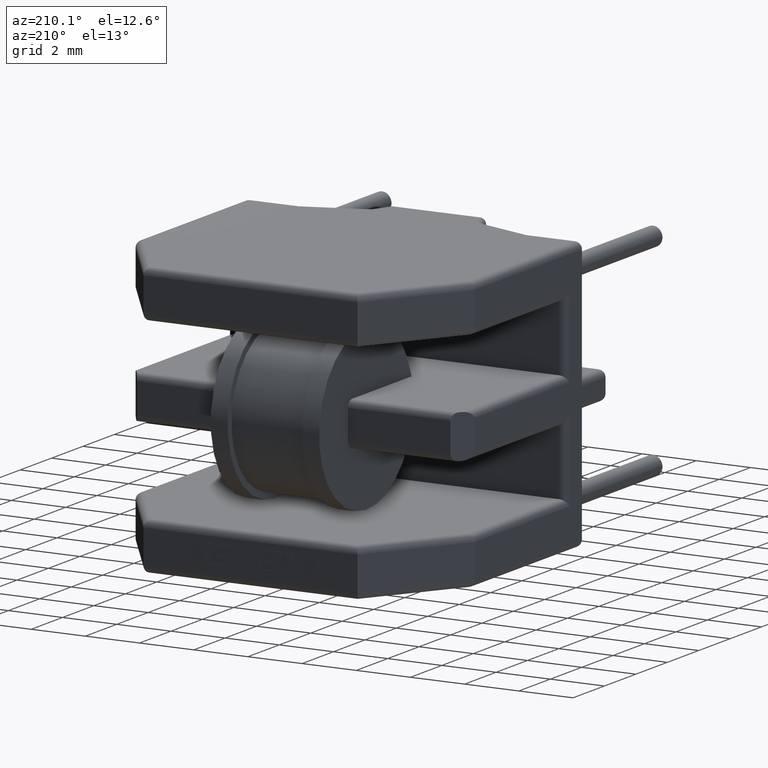
[diagram: clean part render]
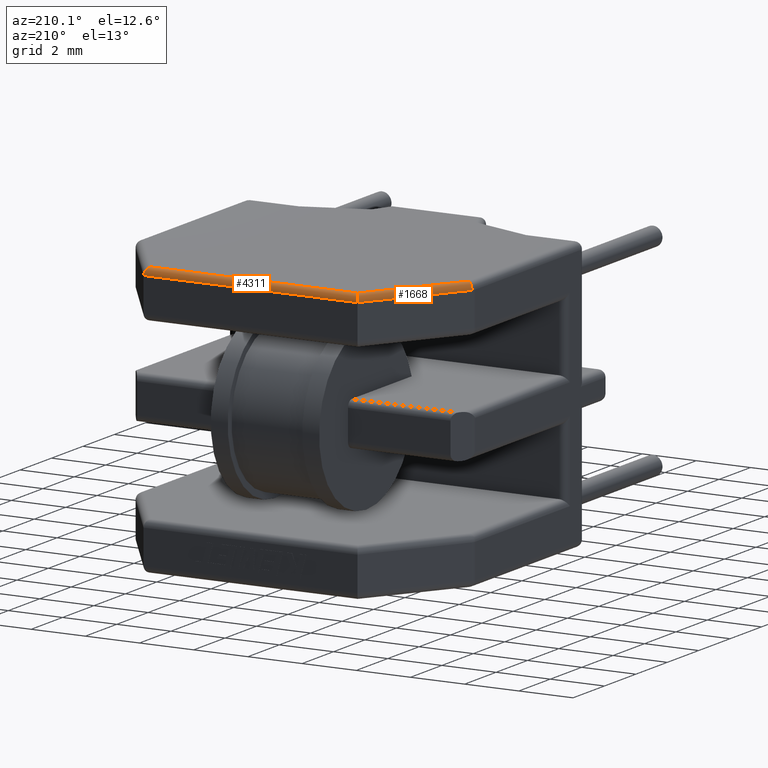
[diagram: same view with one multi-face feature highlighted, each face labeled with its STEP entity id]
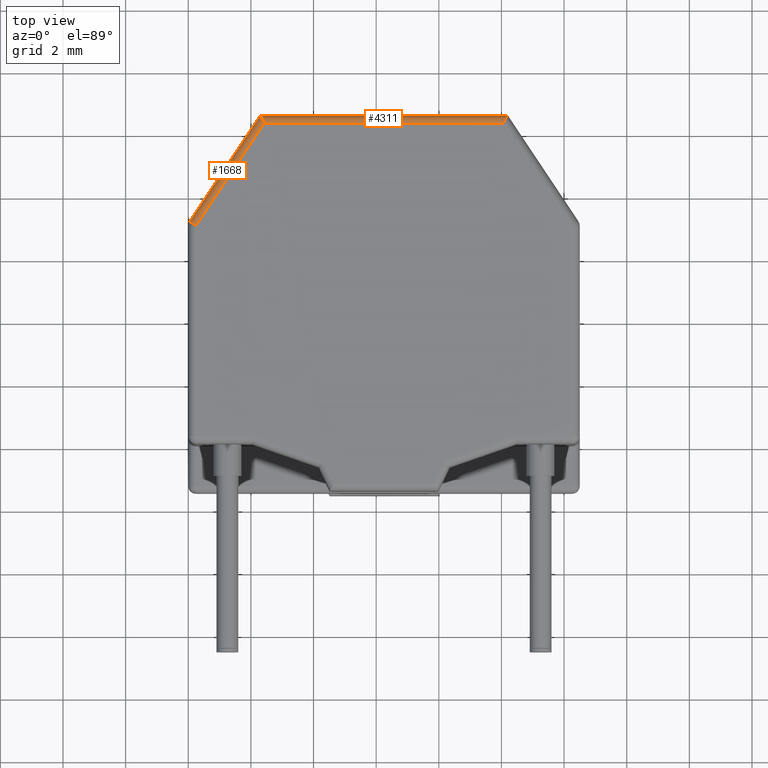
[diagram: same view with one multi-face feature highlighted, each face labeled with its STEP entity id]
A machine part, auxiliary view. The highlighted faces form ONE feature: a constant-radius fillet chain: 2 tangent blend faces with common blend radius 0.25 mm. The faces share edges in the B-rep.
A second angle (top view) of the same feature is appended — it is thin or edge-on in the first view.
Their STEP definitions:
[1] entity #4311 (Cylinder):
#347 = VERTEX_POINT ( 'NONE', #912 ) ;
#588 = EDGE_CURVE ( 'NONE', #2546, #4403, #7432, .T. ) ;
#701 = CARTESIAN_POINT ( 'NONE',  ( 10.19882452366473500, 10.50000000000000000, -0.1035533905932737200 ) ) ;
#891 = CARTESIAN_POINT ( 'NONE',  ( 0.0000000000000000000, 10.50000000000000000, -0.2499999999999999400 ) ) ;
#912 = CARTESIAN_POINT ( 'NONE',  ( 2.435003553221216000, 10.25000000000000000, 0.0000000000000000000 ) ) ;
#948 = DIRECTION ( 'NONE',  ( 1.000000000000000000, 0.0000000000000000000, 0.0000000000000000000 ) ) ;
#1173 = VERTEX_POINT ( 'NONE', #7180 ) ;
#1272 = CARTESIAN_POINT ( 'NONE',  ( 10.06499644677878400, 10.25000000000000000, 0.0000000000000000000 ) ) ;
#1414 = DIRECTION ( 'NONE',  ( 0.0000000000000000000, 0.0000000000000000000, -1.000000000000000000 ) ) ;
#1736 = AXIS2_PLACEMENT_3D ( 'NONE', #4586, #3354, #1414 ) ;
#1743 = CARTESIAN_POINT ( 'NONE',  ( 2.435003553221216000, 10.25000000000000000, 0.0000000000000000000 ) ) ;
#2430 = CARTESIAN_POINT ( 'NONE',  ( 2.356608880807733500, 10.39644660940673000, -1.899910090773129600E-018 ) ) ;
#2546 = VERTEX_POINT ( 'NONE', #4582 ) ;
#3000 = EDGE_CURVE ( 'NONE', #4403, #347, #5056, .T. ) ;
#3354 = DIRECTION ( 'NONE',  ( 1.000000000000000000, 0.0000000000000000000, 0.0000000000000000000 ) ) ;
#3434 = FACE_OUTER_BOUND ( 'NONE', #5519, .T. ) ;
#3482 = DIRECTION ( 'NONE',  ( -1.000000000000000000, -0.0000000000000000000, -0.0000000000000000000 ) ) ;
#3693 = ORIENTED_EDGE ( 'NONE', *, *, #3000, .F. ) ;
#3763 = CARTESIAN_POINT ( 'NONE',  ( 2.301175476335262100, 10.50000000000000000, -0.2500000000000002200 ) ) ;
#3836 = CARTESIAN_POINT ( 'NONE',  ( 10.06499644677878400, 10.25000000000000000, 0.0000000000000000000 ) ) ;
#3936 = CARTESIAN_POINT ( 'NONE',  ( 10.19882452366473800, 10.50000000000000000, -0.2500000000000002200 ) ) ;
#4311 = ADVANCED_FACE ( 'NONE', ( #3434 ), #5646, .T. ) ;
#4403 = VERTEX_POINT ( 'NONE', #3836 ) ;
#4582 = CARTESIAN_POINT ( 'NONE',  ( 10.19882452366473800, 10.50000000000000000, -0.2500000000000002200 ) ) ;
#4586 = CARTESIAN_POINT ( 'NONE',  ( 0.0000000000000000000, 10.25000000000000000, -0.2499999999999999400 ) ) ;
#4601 = ORIENTED_EDGE ( 'NONE', *, *, #588, .F. ) ;
#5038 = LINE ( 'NONE', #891, #8021 ) ;
#5042 =( BOUNDED_CURVE ( )  B_SPLINE_CURVE ( 3, ( #1743, #2430, #8227, #3763 ),
 .UNSPECIFIED., .F., .F. ) 
 B_SPLINE_CURVE_WITH_KNOTS ( ( 4, 4 ),
 ( 1.570796326794895900, 3.141592653589793600 ),
 .UNSPECIFIED. ) 
 CURVE ( )  GEOMETRIC_REPRESENTATION_ITEM ( )  RATIONAL_B_SPLINE_CURVE ( ( 1.000000000000000000, 0.8047378541243646000, 0.8047378541243646000, 1.000000000000000000 ) ) 
 REPRESENTATION_ITEM ( '' )  );
#5056 = LINE ( 'NONE', #6754, #8153 ) ;
#5099 = ORIENTED_EDGE ( 'NONE', *, *, #7324, .F. ) ;
#5177 = CARTESIAN_POINT ( 'NONE',  ( 10.14339111919226600, 10.39644660940672700, 1.272516052315182600E-017 ) ) ;
#5480 = EDGE_CURVE ( 'NONE', #1173, #2546, #5038, .T. ) ;
#5519 = EDGE_LOOP ( 'NONE', ( #5099, #3693, #4601, #6353 ) ) ;
#5646 = CYLINDRICAL_SURFACE ( 'NONE', #1736, 0.2500000000000000600 ) ;
#6353 = ORIENTED_EDGE ( 'NONE', *, *, #5480, .F. ) ;
#6754 = CARTESIAN_POINT ( 'NONE',  ( 0.0000000000000000000, 10.25000000000000000, 0.0000000000000000000 ) ) ;
#7180 = CARTESIAN_POINT ( 'NONE',  ( 2.301175476335262100, 10.50000000000000000, -0.2500000000000002200 ) ) ;
#7324 = EDGE_CURVE ( 'NONE', #347, #1173, #5042, .T. ) ;
#7432 =( BOUNDED_CURVE ( )  B_SPLINE_CURVE ( 3, ( #3936, #701, #5177, #1272 ),
 .UNSPECIFIED., .F., .F. ) 
 B_SPLINE_CURVE_WITH_KNOTS ( ( 4, 4 ),
 ( 0.0000000000000000000, 1.570796326794896300 ),
 .UNSPECIFIED. ) 
 CURVE ( )  GEOMETRIC_REPRESENTATION_ITEM ( )  RATIONAL_B_SPLINE_CURVE ( ( 1.000000000000000000, 0.8047378541243650500, 0.8047378541243650500, 1.000000000000000000 ) ) 
 REPRESENTATION_ITEM ( '' )  );
#8021 = VECTOR ( 'NONE', #948, 1000.000000000000000 ) ;
#8153 = VECTOR ( 'NONE', #3482, 1000.000000000000000 ) ;
#8227 = CARTESIAN_POINT ( 'NONE',  ( 2.301175476335262100, 10.50000000000000400, -0.1035533905932737900 ) ) ;
[2] entity #1668 (Cylinder):
#148 = DIRECTION ( 'NONE',  ( 0.8321611315352944700, -0.5545339044295655200, 0.0000000000000000000 ) ) ;
#347 = VERTEX_POINT ( 'NONE', #912 ) ;
#350 = LINE ( 'NONE', #431, #8211 ) ;
#390 = EDGE_LOOP ( 'NONE', ( #553, #3737, #1547, #6694 ) ) ;
#431 = CARTESIAN_POINT ( 'NONE',  ( 1.801586233344770300, 9.299462495562547600, 0.0000000000000000000 ) ) ;
#553 = ORIENTED_EDGE ( 'NONE', *, *, #7324, .T. ) ;
#758 = VERTEX_POINT ( 'NONE', #2731 ) ;
#912 = CARTESIAN_POINT ( 'NONE',  ( 2.435003553221216000, 10.25000000000000000, 0.0000000000000000000 ) ) ;
#1008 = CYLINDRICAL_SURFACE ( 'NONE', #5879, 0.2499999999999999700 ) ;
#1010 = DIRECTION ( 'NONE',  ( 0.5545339044295656300, 0.8321611315352942500, 0.0000000000000000000 ) ) ;
#1173 = VERTEX_POINT ( 'NONE', #7180 ) ;
#1547 = ORIENTED_EDGE ( 'NONE', *, *, #5192, .F. ) ;
#1668 = ADVANCED_FACE ( 'NONE', ( #6757 ), #1008, .T. ) ;
#1718 = DIRECTION ( 'NONE',  ( -0.5545339044295655200, -0.8321611315352943600, -0.0000000000000000000 ) ) ;
#1743 = CARTESIAN_POINT ( 'NONE',  ( 2.435003553221216000, 10.25000000000000000, 0.0000000000000000000 ) ) ;
#1868 = DIRECTION ( 'NONE',  ( -0.8321611315352944700, 0.5545339044295655200, 0.0000000000000000000 ) ) ;
#2430 = CARTESIAN_POINT ( 'NONE',  ( 2.356608880807733500, 10.39644660940673000, -1.899910090773129600E-018 ) ) ;
#2731 = CARTESIAN_POINT ( 'NONE',  ( 0.04195971711617662400, 7.109708572268342400, -0.2500000000000002200 ) ) ;
#2881 = VERTEX_POINT ( 'NONE', #3958 ) ;
#3695 = DIRECTION ( 'NONE',  ( -0.5545339044295657400, -0.8321611315352943600, 0.0000000000000000000 ) ) ;
#3737 = ORIENTED_EDGE ( 'NONE', *, *, #6513, .F. ) ;
#3763 = CARTESIAN_POINT ( 'NONE',  ( 2.301175476335262100, 10.50000000000000000, -0.2500000000000002200 ) ) ;
#3919 = VECTOR ( 'NONE', #1010, 999.9999999999998900 ) ;
#3958 = CARTESIAN_POINT ( 'NONE',  ( 0.2500000000000000600, 6.971075096160951100, 0.0000000000000000000 ) ) ;
#4624 = DIRECTION ( 'NONE',  ( 0.5545339044295656300, 0.8321611315352943600, 0.0000000000000000000 ) ) ;
#5042 =( BOUNDED_CURVE ( )  B_SPLINE_CURVE ( 3, ( #1743, #2430, #8227, #3763 ),
 .UNSPECIFIED., .F., .F. ) 
 B_SPLINE_CURVE_WITH_KNOTS ( ( 4, 4 ),
 ( 1.570796326794895900, 3.141592653589793600 ),
 .UNSPECIFIED. ) 
 CURVE ( )  GEOMETRIC_REPRESENTATION_ITEM ( )  RATIONAL_B_SPLINE_CURVE ( ( 1.000000000000000000, 0.8047378541243646000, 0.8047378541243646000, 1.000000000000000000 ) ) 
 REPRESENTATION_ITEM ( '' )  );
#5175 = EDGE_CURVE ( 'NONE', #347, #2881, #350, .T. ) ;
#5192 = EDGE_CURVE ( 'NONE', #2881, #758, #6100, .T. ) ;
#5879 = AXIS2_PLACEMENT_3D ( 'NONE', #5906, #4624, #1868 ) ;
#5906 = CARTESIAN_POINT ( 'NONE',  ( 0.2080402828838235600, 6.908108259696340300, -0.2500000000000002200 ) ) ;
#5970 = AXIS2_PLACEMENT_3D ( 'NONE', #6185, #3695, #148 ) ;
#6100 = CIRCLE ( 'NONE', #5970, 0.2499999999999999400 ) ;
#6185 = CARTESIAN_POINT ( 'NONE',  ( 0.2500000000000000600, 6.971075096160951100, -0.2500000000000000000 ) ) ;
#6513 = EDGE_CURVE ( 'NONE', #758, #1173, #8221, .T. ) ;
#6694 = ORIENTED_EDGE ( 'NONE', *, *, #5175, .F. ) ;
#6757 = FACE_OUTER_BOUND ( 'NONE', #390, .T. ) ;
#7180 = CARTESIAN_POINT ( 'NONE',  ( 2.301175476335262100, 10.50000000000000000, -0.2500000000000002200 ) ) ;
#7324 = EDGE_CURVE ( 'NONE', #347, #1173, #5042, .T. ) ;
#8088 = CARTESIAN_POINT ( 'NONE',  ( 0.0000000000000000000, 7.046741735803731600, -0.2500000000000002200 ) ) ;
#8211 = VECTOR ( 'NONE', #1718, 999.9999999999998900 ) ;
#8221 = LINE ( 'NONE', #8088, #3919 ) ;
#8227 = CARTESIAN_POINT ( 'NONE',  ( 2.301175476335262100, 10.50000000000000400, -0.1035533905932737900 ) ) ;